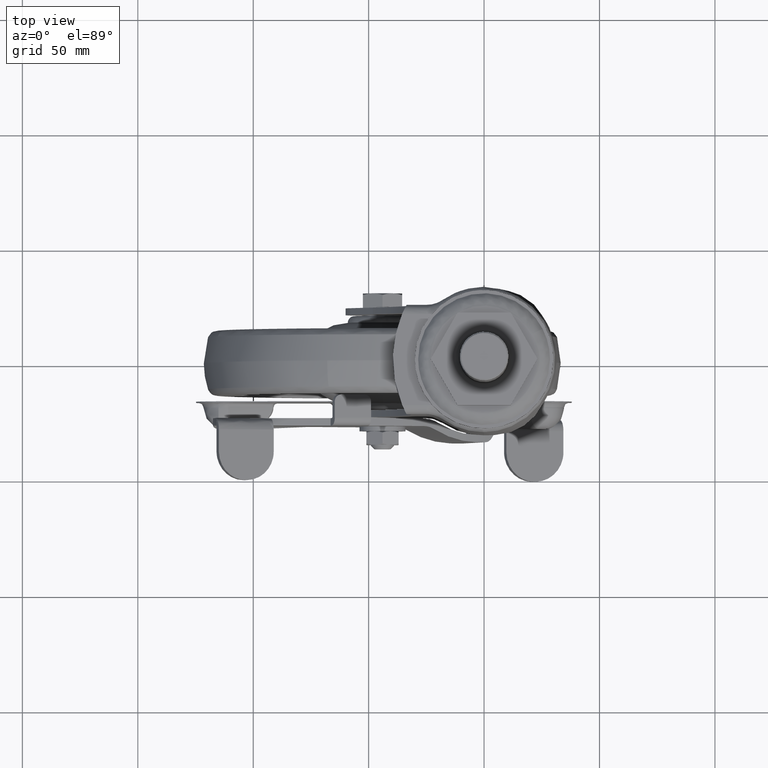
[diagram: clean part render]
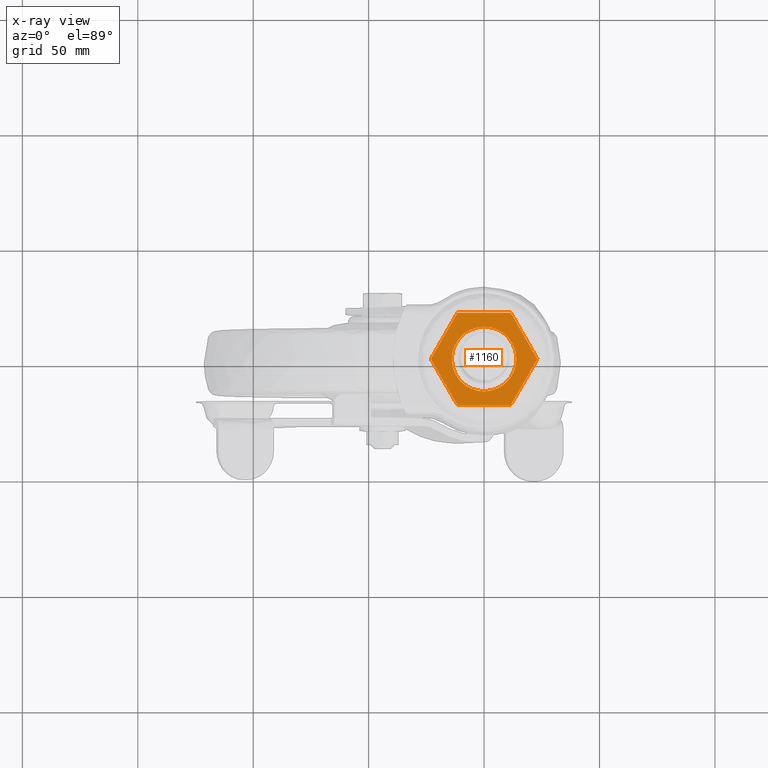
[diagram: x-ray — body ghosted, one internal face saturated and labeled with its STEP entity id]
A machine part, top view, then the same camera in x-ray: the body is ghosted and one INTERNAL B-rep face — a face not visible from any outside direction — is saturated and labeled: STEP entity #1160.
In plain terms, the highlighted face is a freeform B-spline surface patch.
Its self-contained STEP definition (entity closure, byte-faithful):
#986=CARTESIAN_POINT('',(-5.582358567834461,-12.838545748012210,3.885781E-016));
#987=VERTEX_POINT('',#986);
#993=CARTESIAN_POINT('',(-13.999677999999779,2.842171E-014,0.0));
#994=VERTEX_POINT('',#993);
#995=CARTESIAN_POINT('',(-13.999677999999779,2.842171E-014,0.0));
#996=CARTESIAN_POINT('',(-13.999677999999783,-9.178591094844210,0.0));
#997=CARTESIAN_POINT('',(-5.582358567834462,-12.838545748012207,0.0));
#1005=(BOUNDED_CURVE()B_SPLINE_CURVE(2,(#995,#996,#997),.UNSPECIFIED.,.F.,.U.)B_SPLINE_CURVE_WITH_KNOTS((3,3),(0.500000000000000,0.682294095772620),.UNSPECIFIED.)CURVE()GEOMETRIC_REPRESENTATION_ITEM()RATIONAL_B_SPLINE_CURVE((1.0,0.786429182073878,0.884319957245847))REPRESENTATION_ITEM(''));
#1006=EDGE_CURVE('',#994,#987,#1005,.T.);
#1008=CARTESIAN_POINT('',(5.582358567834461,12.838545748012260,3.885781E-016));
#1009=VERTEX_POINT('',#1008);
#1010=CARTESIAN_POINT('',(5.582358567834462,12.838545748012264,0.0));
#1011=CARTESIAN_POINT('',(2.911937211791496,13.999677999999804,0.0));
#1012=CARTESIAN_POINT('',(0.0,13.999677999999809,0.0));
#1013=CARTESIAN_POINT('',(-13.999677999999781,13.999677999999808,0.0));
#1014=CARTESIAN_POINT('',(-13.999677999999779,2.842171E-014,0.0));
#1022=(BOUNDED_CURVE()B_SPLINE_CURVE(2,(#1010,#1011,#1012,#1013,#1014),.UNSPECIFIED.,.F.,.U.)B_SPLINE_CURVE_WITH_KNOTS((3,2,3),(0.182294095772620,0.250000000000000,0.500000000000000),.UNSPECIFIED.)CURVE()GEOMETRIC_REPRESENTATION_ITEM()RATIONAL_B_SPLINE_CURVE((0.884319957245847,0.920677599112670,1.0,0.707106781186547,1.0))REPRESENTATION_ITEM(''));
#1023=EDGE_CURVE('',#1009,#994,#1022,.T.);
#1071=CARTESIAN_POINT('',(13.999677999999779,2.842171E-014,0.0));
#1072=VERTEX_POINT('',#1071);
#1073=CARTESIAN_POINT('',(13.999677999999779,2.842171E-014,0.0));
#1074=CARTESIAN_POINT('',(13.999677999999784,9.178591094844267,0.0));
#1075=CARTESIAN_POINT('',(5.582358567834460,12.838545748012264,0.0));
#1083=(BOUNDED_CURVE()B_SPLINE_CURVE(2,(#1073,#1074,#1075),.UNSPECIFIED.,.F.,.U.)B_SPLINE_CURVE_WITH_KNOTS((3,3),(0.0,0.182294095772620),.UNSPECIFIED.)CURVE()GEOMETRIC_REPRESENTATION_ITEM()RATIONAL_B_SPLINE_CURVE((1.0,0.786429182073878,0.884319957245847))REPRESENTATION_ITEM(''));
#1084=EDGE_CURVE('',#1072,#1009,#1083,.T.);
#1086=CARTESIAN_POINT('',(-5.582358567834462,-12.838545748012207,0.0));
#1087=CARTESIAN_POINT('',(-2.911937211791496,-13.999677999999760,0.0));
#1088=CARTESIAN_POINT('',(0.0,-13.999677999999751,0.0));
#1089=CARTESIAN_POINT('',(13.999677999999781,-13.999677999999754,0.0));
#1090=CARTESIAN_POINT('',(13.999677999999779,2.842171E-014,0.0));
#1098=(BOUNDED_CURVE()B_SPLINE_CURVE(2,(#1086,#1087,#1088,#1089,#1090),.UNSPECIFIED.,.F.,.U.)B_SPLINE_CURVE_WITH_KNOTS((3,2,3),(0.682294095772620,0.750000000000000,1.0),.UNSPECIFIED.)CURVE()GEOMETRIC_REPRESENTATION_ITEM()RATIONAL_B_SPLINE_CURVE((0.884319957245847,0.920677599112670,1.0,0.707106781186547,1.0))REPRESENTATION_ITEM(''));
#1099=EDGE_CURVE('',#987,#1072,#1098,.T.);
#1105=CARTESIAN_POINT('',(-25.401423559428661,-21.997999922472239,0.0));
#1106=CARTESIAN_POINT('',(25.400781798288019,-21.997999922472239,0.0));
#1107=CARTESIAN_POINT('',(-25.401423559428661,21.998000995355842,0.0));
#1108=CARTESIAN_POINT('',(25.400781798288019,21.998000995355842,0.0));
#1109=B_SPLINE_SURFACE_WITH_KNOTS('',1,1,((#1105,#1107),(#1106,#1108)),.UNSPECIFIED.,.F.,.F.,.U.,(2,2),(2,2),(0.0,50.802205357716680),(0.0,43.996000917828077),.UNSPECIFIED.);
#1110=CARTESIAN_POINT('',(-23.094332000000001,0.0,0.0));
#1111=VERTEX_POINT('',#1110);
#1112=CARTESIAN_POINT('',(-11.547327000000100,20.0,0.0));
#1113=VERTEX_POINT('',#1112);
#1114=CARTESIAN_POINT('',(-23.094332000000001,0.0,0.0));
#1115=CARTESIAN_POINT('',(-11.547327000000100,20.0,0.0));
#1116=QUASI_UNIFORM_CURVE('',1,(#1114,#1115),.UNSPECIFIED.,.F.,.U.);
#1117=EDGE_CURVE('',#1111,#1113,#1116,.T.);
#1118=ORIENTED_EDGE('',*,*,#1117,.T.);
#1119=CARTESIAN_POINT('',(11.546683999999960,20.0,0.0));
#1120=VERTEX_POINT('',#1119);
#1121=CARTESIAN_POINT('',(-11.547327000000100,20.0,0.0));
#1122=CARTESIAN_POINT('',(11.546683999999960,20.0,0.0));
#1123=QUASI_UNIFORM_CURVE('',1,(#1121,#1122),.UNSPECIFIED.,.F.,.U.);
#1124=EDGE_CURVE('',#1113,#1120,#1123,.T.);
#1125=ORIENTED_EDGE('',*,*,#1124,.T.);
#1126=CARTESIAN_POINT('',(23.093689000000101,0.0,0.0));
#1127=VERTEX_POINT('',#1126);
#1128=CARTESIAN_POINT('',(11.546683999999960,20.0,0.0));
#1129=CARTESIAN_POINT('',(23.093689000000101,0.0,0.0));
#1130=QUASI_UNIFORM_CURVE('',1,(#1128,#1129),.UNSPECIFIED.,.F.,.U.);
#1131=EDGE_CURVE('',#1120,#1127,#1130,.T.);
#1132=ORIENTED_EDGE('',*,*,#1131,.T.);
#1133=CARTESIAN_POINT('',(11.546683999999960,-20.0,0.0));
#1134=VERTEX_POINT('',#1133);
#1135=CARTESIAN_POINT('',(23.093689000000101,0.0,0.0));
#1136=CARTESIAN_POINT('',(11.546683999999960,-20.0,0.0));
#1137=QUASI_UNIFORM_CURVE('',1,(#1135,#1136),.UNSPECIFIED.,.F.,.U.);
#1138=EDGE_CURVE('',#1127,#1134,#1137,.T.);
#1139=ORIENTED_EDGE('',*,*,#1138,.T.);
#1140=CARTESIAN_POINT('',(-11.547327000000100,-20.0,0.0));
#1141=VERTEX_POINT('',#1140);
#1142=CARTESIAN_POINT('',(11.546683999999960,-20.0,0.0));
#1143=CARTESIAN_POINT('',(-11.547327000000100,-20.0,0.0));
#1144=QUASI_UNIFORM_CURVE('',1,(#1142,#1143),.UNSPECIFIED.,.F.,.U.);
#1145=EDGE_CURVE('',#1134,#1141,#1144,.T.);
#1146=ORIENTED_EDGE('',*,*,#1145,.T.);
#1147=CARTESIAN_POINT('',(-11.547327000000100,-20.0,0.0));
#1148=CARTESIAN_POINT('',(-23.094332000000001,0.0,0.0));
#1149=QUASI_UNIFORM_CURVE('',1,(#1147,#1148),.UNSPECIFIED.,.F.,.U.);
#1150=EDGE_CURVE('',#1141,#1111,#1149,.T.);
#1151=ORIENTED_EDGE('',*,*,#1150,.T.);
#1152=EDGE_LOOP('',(#1118,#1125,#1132,#1139,#1146,#1151));
#1153=FACE_OUTER_BOUND('',#1152,.T.);
#1154=ORIENTED_EDGE('',*,*,#1084,.T.);
#1155=ORIENTED_EDGE('',*,*,#1023,.T.);
#1156=ORIENTED_EDGE('',*,*,#1006,.T.);
#1157=ORIENTED_EDGE('',*,*,#1099,.T.);
#1158=EDGE_LOOP('',(#1154,#1155,#1156,#1157));
#1159=FACE_BOUND('',#1158,.T.);
#1160=ADVANCED_FACE('',(#1153,#1159),#1109,.F.);